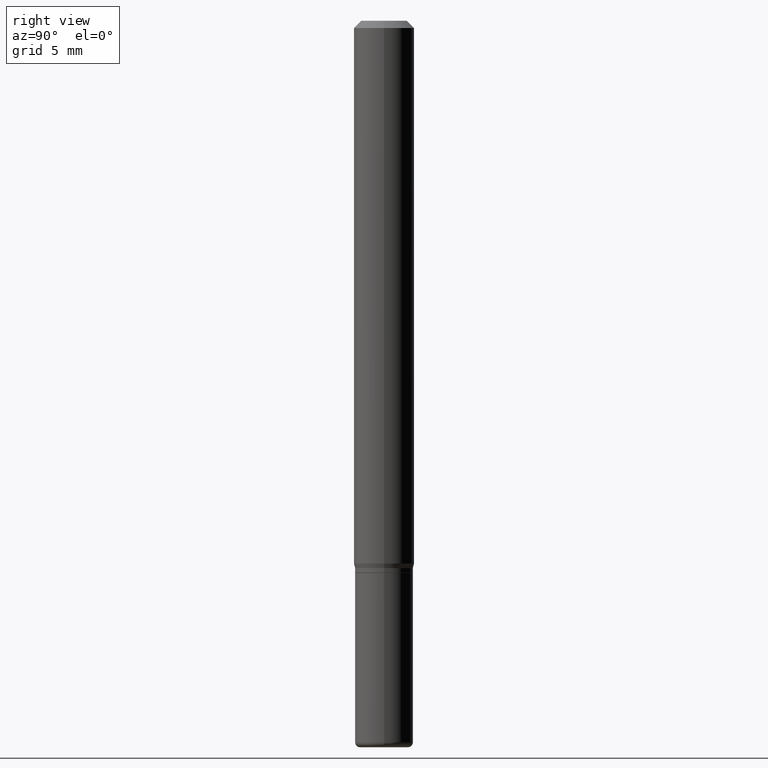
[diagram: clean part render]
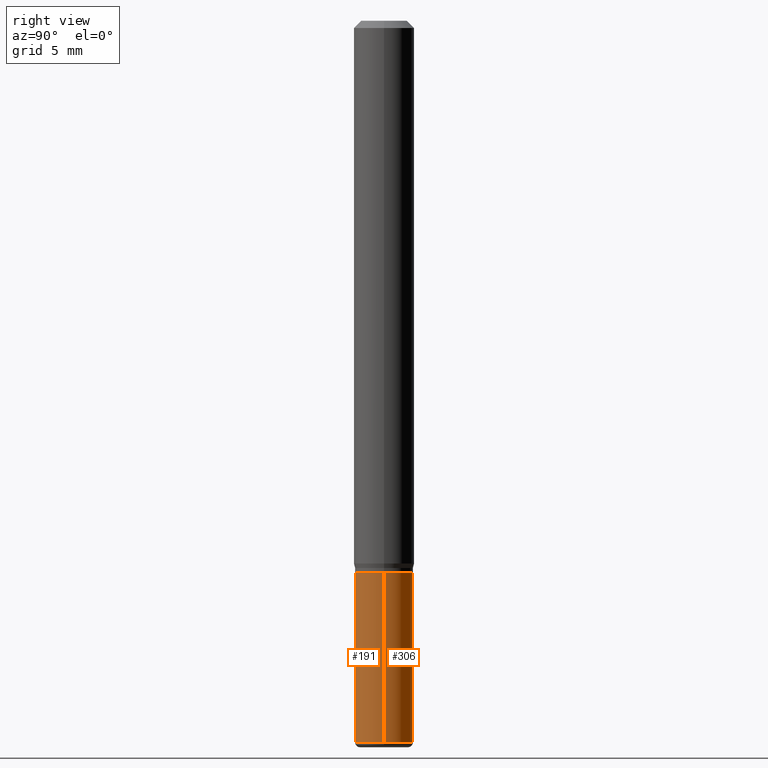
[diagram: same view with one multi-face feature highlighted, each face labeled with its STEP entity id]
A machine part, right view. The highlighted faces form ONE feature: a constant-radius fillet chain: 2 tangent blend faces with common blend radius 1.524 mm. The faces share edges in the B-rep.
Their STEP definitions:
[1] entity #191 (Cylinder):
#2 = EDGE_CURVE ( 'NONE', #149, #237, #317, .T. ) ;
#5 = CARTESIAN_POINT ( 'NONE',  ( -0.05999999999999994921, -4.164972319122677700E-15, -1.490000000000000213 ) ) ;
#32 = ORIENTED_EDGE ( 'NONE', *, *, #2, .F. ) ;
#41 = ORIENTED_EDGE ( 'NONE', *, *, #434, .T. ) ;
#50 = VECTOR ( 'NONE', #286, 39.37007874015748143 ) ;
#94 = CARTESIAN_POINT ( 'NONE',  ( 0.000000000000000000, 0.000000000000000000, 0.000000000000000000 ) ) ;
#137 = DIRECTION ( 'NONE',  ( -2.445468806185136597E-29, 3.491481338843145583E-15, 1.000000000000000000 ) ) ;
#149 = VERTEX_POINT ( 'NONE', #212 ) ;
#150 = VECTOR ( 'NONE', #485, 39.37007874015748143 ) ;
#191 = ADVANCED_FACE ( 'NONE', ( #287 ), #425, .T. ) ;
#212 = CARTESIAN_POINT ( 'NONE',  ( -0.05999999999999999778, -4.164972319122677700E-15, -1.140000000000000124 ) ) ;
#220 = EDGE_CURVE ( 'NONE', #439, #237, #315, .T. ) ;
#233 = DIRECTION ( 'NONE',  ( -2.445468806185136597E-29, 3.491481338843145583E-15, 1.000000000000000000 ) ) ;
#237 = VERTEX_POINT ( 'NONE', #283 ) ;
#252 = AXIS2_PLACEMENT_3D ( 'NONE', #94, #137, #482 ) ;
#265 = ORIENTED_EDGE ( 'NONE', *, *, #497, .F. ) ;
#278 = ORIENTED_EDGE ( 'NONE', *, *, #220, .T. ) ;
#283 = CARTESIAN_POINT ( 'NONE',  ( 0.05999999999999999778, -4.399266486942362543E-15, -1.140000000000000124 ) ) ;
#286 = DIRECTION ( 'NONE',  ( -2.445468806185136877E-29, 3.491481338843145188E-15, 1.000000000000000000 ) ) ;
#287 = FACE_OUTER_BOUND ( 'NONE', #313, .T. ) ;
#289 = DIRECTION ( 'NONE',  ( 1.000000000000000000, -6.982962677686273810E-15, 0.000000000000000000 ) ) ;
#293 = CARTESIAN_POINT ( 'NONE',  ( 0.05999999999999994921, -5.621284955537463950E-15, -1.490000000000000213 ) ) ;
#296 = CIRCLE ( 'NONE', #505, 0.05999999999999994921 ) ;
#313 = EDGE_LOOP ( 'NONE', ( #265, #41, #278, #32 ) ) ;
#315 = LINE ( 'NONE', #360, #150 ) ;
#317 = CIRCLE ( 'NONE', #340, 0.05999999999999999778 ) ;
#340 = AXIS2_PLACEMENT_3D ( 'NONE', #445, #233, #480 ) ;
#360 = CARTESIAN_POINT ( 'NONE',  ( 0.05999999999999997696, -4.189777606611758449E-16, 2.925706065477560355E-30 ) ) ;
#408 = LINE ( 'NONE', #451, #50 ) ;
#413 = DIRECTION ( 'NONE',  ( -2.445468806185136597E-29, 3.491481338843145583E-15, 1.000000000000000000 ) ) ;
#425 = CYLINDRICAL_SURFACE ( 'NONE', #252, 0.05999999999999997696 ) ;
#434 = EDGE_CURVE ( 'NONE', #512, #439, #296, .T. ) ;
#439 = VERTEX_POINT ( 'NONE', #293 ) ;
#445 = CARTESIAN_POINT ( 'NONE',  ( 2.787834439051055989E-29, -3.980288726281186698E-15, -1.140000000000000124 ) ) ;
#451 = CARTESIAN_POINT ( 'NONE',  ( -0.05999999999999997696, 4.263256414560599478E-16, -2.951361054152942362E-30 ) ) ;
#480 = DIRECTION ( 'NONE',  ( 1.000000000000000000, -6.982962677686268288E-15, 0.000000000000000000 ) ) ;
#482 = DIRECTION ( 'NONE',  ( 1.000000000000000000, -6.982962677686266711E-15, 4.876176775795935793E-29 ) ) ;
#485 = DIRECTION ( 'NONE',  ( -2.445468806185136877E-29, 3.491481338843145188E-15, 1.000000000000000000 ) ) ;
#486 = CARTESIAN_POINT ( 'NONE',  ( 3.643748521215853910E-29, -5.202307194876288105E-15, -1.490000000000000213 ) ) ;
#497 = EDGE_CURVE ( 'NONE', #512, #149, #408, .T. ) ;
#505 = AXIS2_PLACEMENT_3D ( 'NONE', #486, #413, #289 ) ;
#512 = VERTEX_POINT ( 'NONE', #5 ) ;
[2] entity #306 (Cylinder):
#5 = CARTESIAN_POINT ( 'NONE',  ( -0.05999999999999994921, -4.164972319122677700E-15, -1.490000000000000213 ) ) ;
#50 = VECTOR ( 'NONE', #286, 39.37007874015748143 ) ;
#51 = DIRECTION ( 'NONE',  ( 1.000000000000000000, -6.982962677686266711E-15, 4.876176775795935793E-29 ) ) ;
#62 = AXIS2_PLACEMENT_3D ( 'NONE', #139, #143, #499 ) ;
#64 = DIRECTION ( 'NONE',  ( -2.445468806185136597E-29, 3.491481338843145583E-15, 1.000000000000000000 ) ) ;
#73 = ORIENTED_EDGE ( 'NONE', *, *, #497, .T. ) ;
#77 = AXIS2_PLACEMENT_3D ( 'NONE', #338, #494, #51 ) ;
#108 = EDGE_CURVE ( 'NONE', #439, #512, #264, .T. ) ;
#139 = CARTESIAN_POINT ( 'NONE',  ( 3.643748521215853910E-29, -5.202307194876288105E-15, -1.490000000000000213 ) ) ;
#142 = FACE_OUTER_BOUND ( 'NONE', #182, .T. ) ;
#143 = DIRECTION ( 'NONE',  ( -2.445468806185136597E-29, 3.491481338843145583E-15, 1.000000000000000000 ) ) ;
#149 = VERTEX_POINT ( 'NONE', #212 ) ;
#150 = VECTOR ( 'NONE', #485, 39.37007874015748143 ) ;
#152 = ORIENTED_EDGE ( 'NONE', *, *, #352, .F. ) ;
#168 = ORIENTED_EDGE ( 'NONE', *, *, #220, .F. ) ;
#178 = DIRECTION ( 'NONE',  ( 1.000000000000000000, -6.982962677686268288E-15, 0.000000000000000000 ) ) ;
#182 = EDGE_LOOP ( 'NONE', ( #195, #73, #152, #168 ) ) ;
#195 = ORIENTED_EDGE ( 'NONE', *, *, #108, .T. ) ;
#212 = CARTESIAN_POINT ( 'NONE',  ( -0.05999999999999999778, -4.164972319122677700E-15, -1.140000000000000124 ) ) ;
#220 = EDGE_CURVE ( 'NONE', #439, #237, #315, .T. ) ;
#237 = VERTEX_POINT ( 'NONE', #283 ) ;
#264 = CIRCLE ( 'NONE', #62, 0.05999999999999994921 ) ;
#266 = AXIS2_PLACEMENT_3D ( 'NONE', #424, #64, #178 ) ;
#283 = CARTESIAN_POINT ( 'NONE',  ( 0.05999999999999999778, -4.399266486942362543E-15, -1.140000000000000124 ) ) ;
#286 = DIRECTION ( 'NONE',  ( -2.445468806185136877E-29, 3.491481338843145188E-15, 1.000000000000000000 ) ) ;
#293 = CARTESIAN_POINT ( 'NONE',  ( 0.05999999999999994921, -5.621284955537463950E-15, -1.490000000000000213 ) ) ;
#300 = CYLINDRICAL_SURFACE ( 'NONE', #77, 0.05999999999999997696 ) ;
#306 = ADVANCED_FACE ( 'NONE', ( #142 ), #300, .T. ) ;
#315 = LINE ( 'NONE', #360, #150 ) ;
#338 = CARTESIAN_POINT ( 'NONE',  ( 0.000000000000000000, 0.000000000000000000, 0.000000000000000000 ) ) ;
#352 = EDGE_CURVE ( 'NONE', #237, #149, #392, .T. ) ;
#360 = CARTESIAN_POINT ( 'NONE',  ( 0.05999999999999997696, -4.189777606611758449E-16, 2.925706065477560355E-30 ) ) ;
#392 = CIRCLE ( 'NONE', #266, 0.05999999999999999778 ) ;
#408 = LINE ( 'NONE', #451, #50 ) ;
#424 = CARTESIAN_POINT ( 'NONE',  ( 2.787834439051055989E-29, -3.980288726281186698E-15, -1.140000000000000124 ) ) ;
#439 = VERTEX_POINT ( 'NONE', #293 ) ;
#451 = CARTESIAN_POINT ( 'NONE',  ( -0.05999999999999997696, 4.263256414560599478E-16, -2.951361054152942362E-30 ) ) ;
#485 = DIRECTION ( 'NONE',  ( -2.445468806185136877E-29, 3.491481338843145188E-15, 1.000000000000000000 ) ) ;
#494 = DIRECTION ( 'NONE',  ( -2.445468806185136597E-29, 3.491481338843145583E-15, 1.000000000000000000 ) ) ;
#497 = EDGE_CURVE ( 'NONE', #512, #149, #408, .T. ) ;
#499 = DIRECTION ( 'NONE',  ( 1.000000000000000000, -6.982962677686273810E-15, 0.000000000000000000 ) ) ;
#512 = VERTEX_POINT ( 'NONE', #5 ) ;